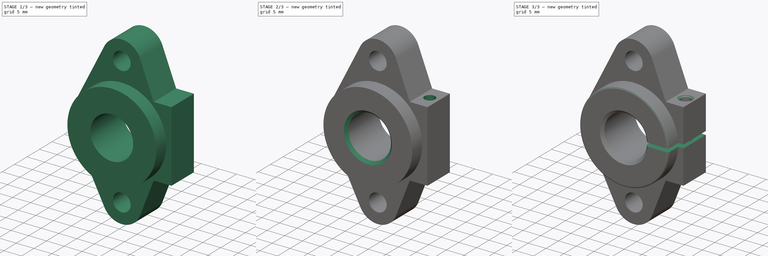
[diagram: build sequence overview — one tinted view per stage of 3, left to right]
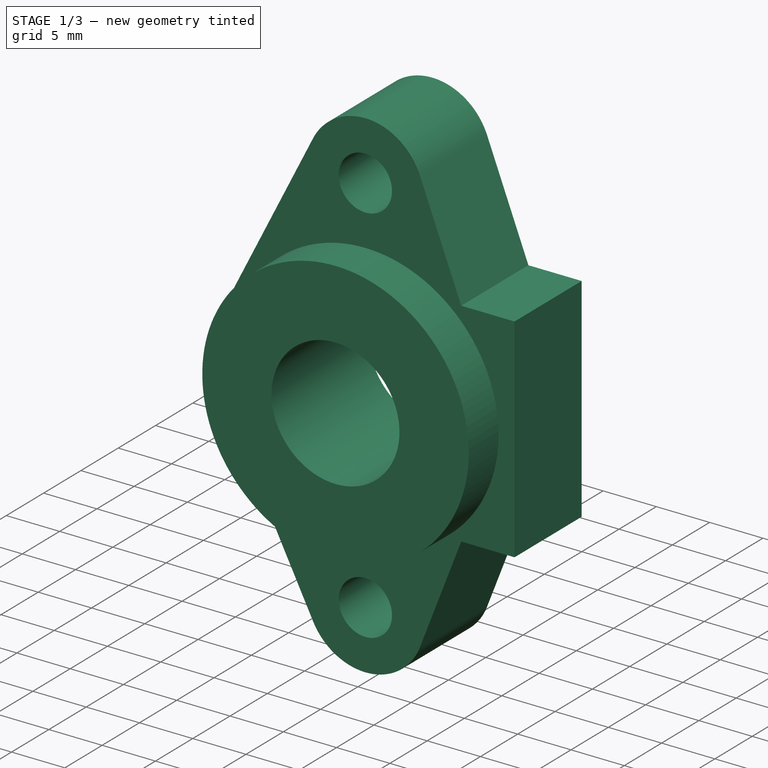
[diagram: stage 1 of 3 — iso view after this stage's code; geometry added in this stage tinted green]
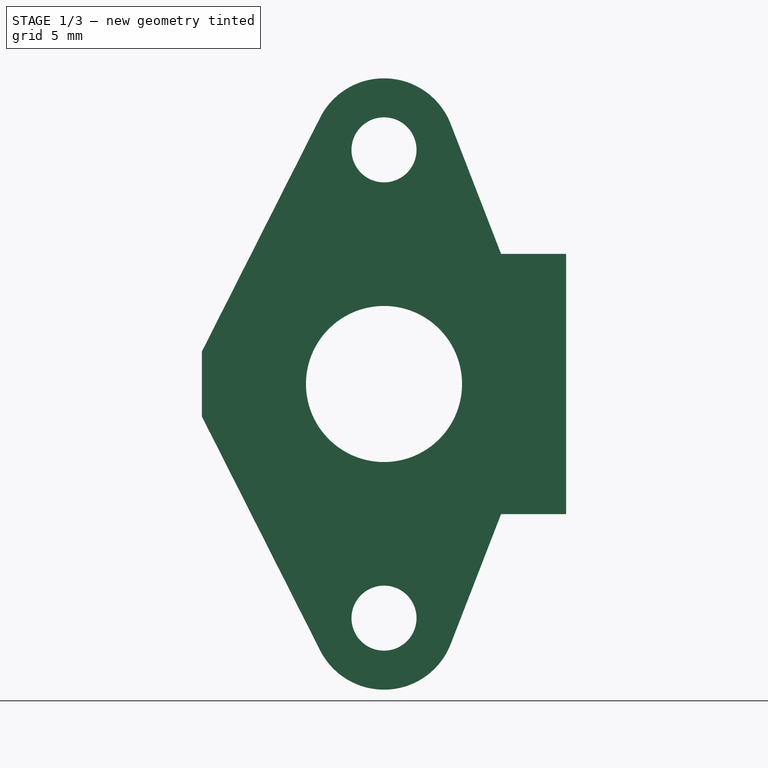
[diagram: stage 1 of 3 — front view after this stage's code; geometry added in this stage tinted green]
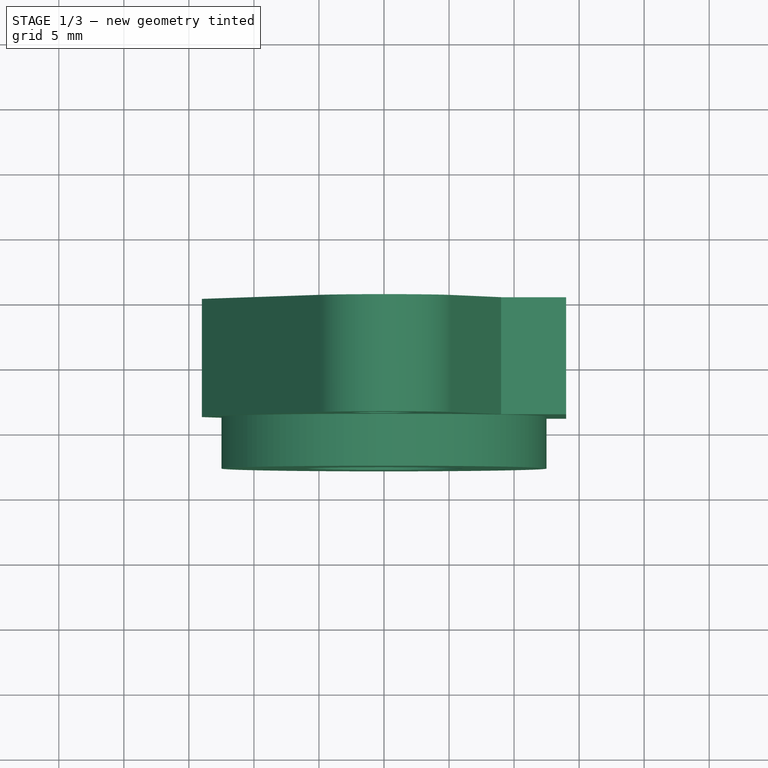
[diagram: stage 1 of 3 — top view after this stage's code; geometry added in this stage tinted green]
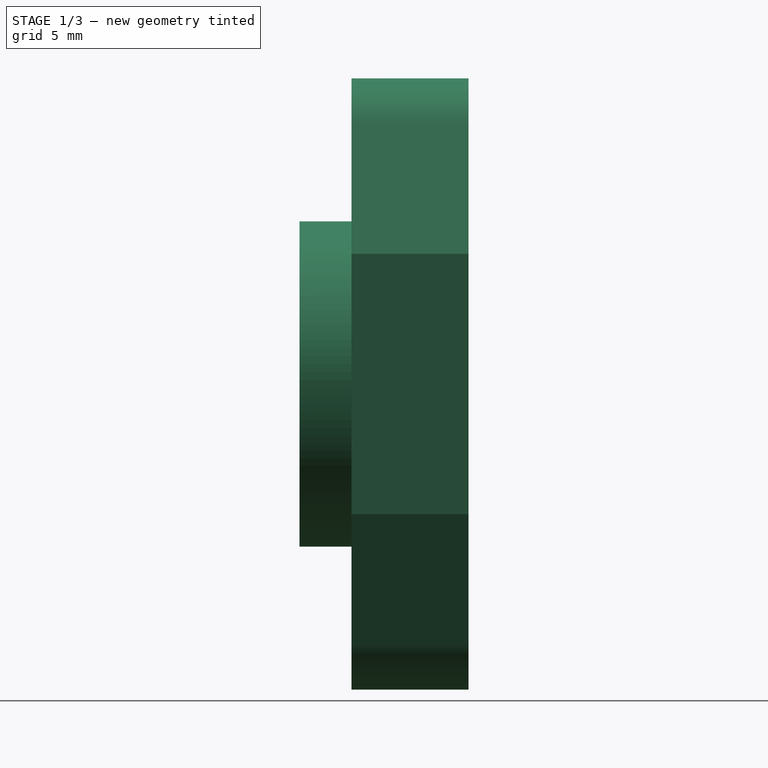
[diagram: stage 1 of 3 — right view after this stage's code; geometry added in this stage tinted green]
FCSTD DOCUMENT  (FreeCAD 0.15R4671 (Git))
Label: shf12
License: All rights reserved
LicenseURL: http://en.wikipedia.org/wiki/All_rights_reserved
objects: Sketcher::SketchObject×4, PartDesign::Pocket×2, PartDesign::Chamfer×2, PartDesign::Pad×1, PartDesign::Revolution×1, Part::MultiFuse×1, PartDesign::Fillet×1
note: 16 computed .brp shape members not serialized (recipe doc carries the construction recipe); baked Part::Feature solids carry a one-line shape summary decoded from their .brp

FEATURE [Sketcher::SketchObject] Sketch  label="mount-sketch"
  Placement = pos=(0,0,0) rot=(1,0,0;1.5708rad)
  sketch-geometry (13):
    g0: Circle CenterX=0 CenterY=18 CenterZ=0 NormalX=0 NormalY=0 NormalZ=1 Radius=2.5
    g1: Circle CenterX=0 CenterY=-18 CenterZ=0 NormalX=0 NormalY=0 NormalZ=1 Radius=2.5
    g2: LineSegment StartX=-14 StartY=-2.5 StartZ=0 EndX=-14 EndY=2.5 EndZ=0
    g3: LineSegment StartX=-14 StartY=2.5 StartZ=0 EndX=-4.90829 EndY=20.4817 EndZ=0
    g4: ArcOfCircle CenterX=0 CenterY=18 CenterZ=0 NormalX=0 NormalY=0 NormalZ=1 Radius=5.5 StartAngle=0.369816 EndAngle=2.67347
    g5: LineSegment StartX=5.12817 StartY=19.9879 StartZ=0 EndX=9 EndY=10 EndZ=0
    g6: LineSegment StartX=9 StartY=10 StartZ=0 EndX=14 EndY=10 EndZ=0
    g7: LineSegment StartX=14 StartY=10 StartZ=0 EndX=14 EndY=-10 EndZ=0
    g8: LineSegment StartX=14 StartY=-10 StartZ=0 EndX=9 EndY=-10 EndZ=0
    g9: LineSegment StartX=9 StartY=-10 StartZ=0 EndX=5.12817 EndY=-19.9879 EndZ=0
    g10: ArcOfCircle CenterX=0 CenterY=-18 CenterZ=0 NormalX=0 NormalY=0 NormalZ=1 Radius=5.5 StartAngle=3.60971 EndAngle=5.91337
    g11: LineSegment StartX=-4.9083 StartY=-20.4817 StartZ=0 EndX=-14 EndY=-2.5 EndZ=0
    g12: Circle CenterX=0 CenterY=0 CenterZ=0 NormalX=0 NormalY=0 NormalZ=1 Radius=10
  constraints (36):
    c: PointOnObject(g1,g-2)
    c: PointOnObject(g0,g-2)
    c: Symmetric(g0,g1,g-1)
    c: Radius(g0) = 2.5
    c: Equal(g0,g1)
    c: DistanceY(g0,g1) = -36
    c: Vertical(g2)
    c: Coincident(g2,g3)
    c: Tangent(g3,g4) = 1.5708
    c: Coincident(g4,g5)
    c: Coincident(g5,g6)
    c: Horizontal(g6)
    c: Coincident(g6,g7)
    c: Vertical(g7)
    c: Coincident(g7,g8)
    c: Horizontal(g8)
    c: Coincident(g8,g9)
    c: Tangent(g9,g10) = 1.5708
    c: Coincident(g10,g11)
    c: Coincident(g11,g2)
    c: Symmetric(g2,g2,g-1)
    c: DistanceY(g2,g2) = -5
    c: Symmetric(g6,g7,g-1)
    c: DistanceY(g6,g7) = -20
    c: Equal(g6,g8)
    c: DistanceX(g5,g6) = 5
    c: Coincident(g4,g0)
    c: Coincident(g10,g1)
    c: Radius(g4) = 5.5
    c: Equal(g4,g10)
    c: DistanceX(g2,g7) = 28
    c: Tangent(g5,g4)
    c: Tangent(g10,g11)
    c: DistanceX(g-1,g2) = -14
    c: Coincident(g12,g-1)
    c: Radius(g12) = 10
FEATURE [PartDesign::Pad] Pad  label="mount"
  Length = 9
  Length2 = 100
  Placement = pos=(0,0,0) rot=(1,0,0;1.5708rad)
  Sketch = -> Sketch
  Type = 0
FEATURE [Sketcher::SketchObject] Sketch001  label="shaft-support-sketch"
  Placement = pos=(0,0,0) rot=(0.57735,0.57735,0.57735;2.0944rad)
  sketch-geometry (4):
    g0: LineSegment StartX=-13 StartY=12.5 StartZ=0 EndX=0 EndY=12.5 EndZ=0
    g1: LineSegment StartX=0 StartY=12.5 StartZ=0 EndX=0 EndY=6 EndZ=0
    g2: LineSegment StartX=0 StartY=6 StartZ=0 EndX=-13 EndY=6 EndZ=0
    g3: LineSegment StartX=-13 StartY=6 StartZ=0 EndX=-13 EndY=12.5 EndZ=0
  constraints (12):
    c: Coincident(g0,g1)
    c: Coincident(g1,g2)
    c: Coincident(g2,g3)
    c: Coincident(g3,g0)
    c: Horizontal(g0)
    c: Horizontal(g2)
    c: Vertical(g1)
    c: Vertical(g3)
    c: PointOnObject(g0,g-2)
    c: DistanceX(g0,g0) = -13
    c: DistanceY(g-1,g2) = 6
    c: DistanceY(g-1,g0) = 12.5
FEATURE [PartDesign::Revolution] Revolution  label="shaft-support"
  Angle = 360
  Axis = (0,1,0)
  Base = (0,0,0)
  Placement = pos=(0,0,0) rot=(0.57735,0.57735,0.57735;2.0944rad)
  ReferenceAxis = -> Sketch001 [H_Axis]
  Sketch = -> Sketch001
FEATURE [Part::MultiFuse] Fusion  label="body"
  Shapes = -> [Pad,Revolution]
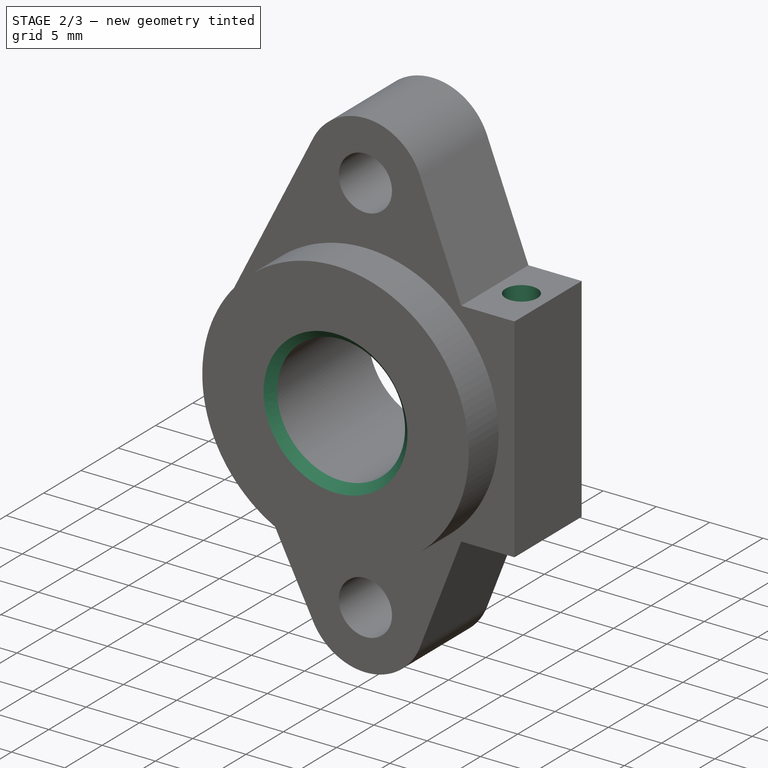
[diagram: stage 2 of 3 — iso view after this stage's code; geometry added in this stage tinted green]
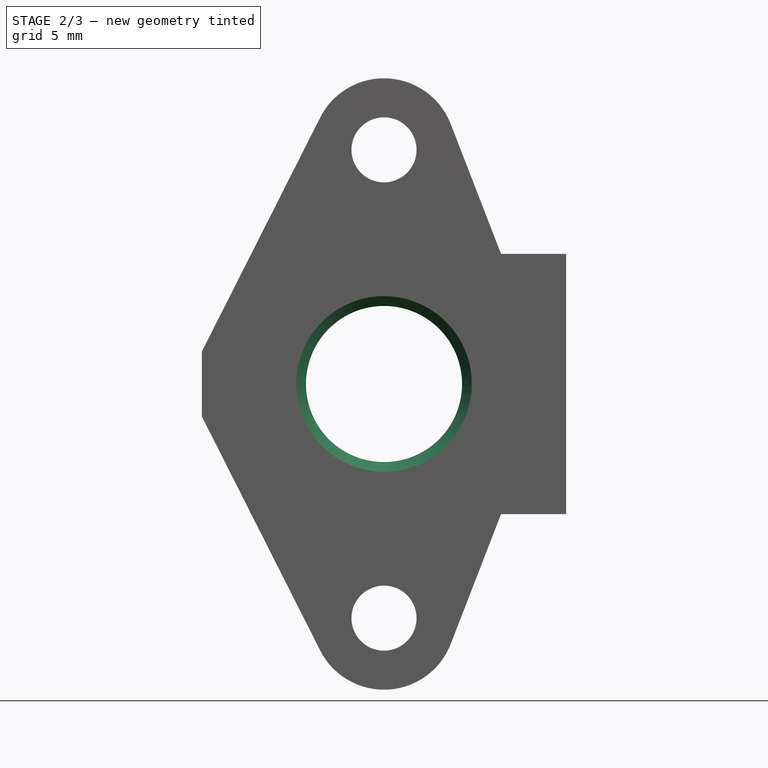
[diagram: stage 2 of 3 — front view after this stage's code; geometry added in this stage tinted green]
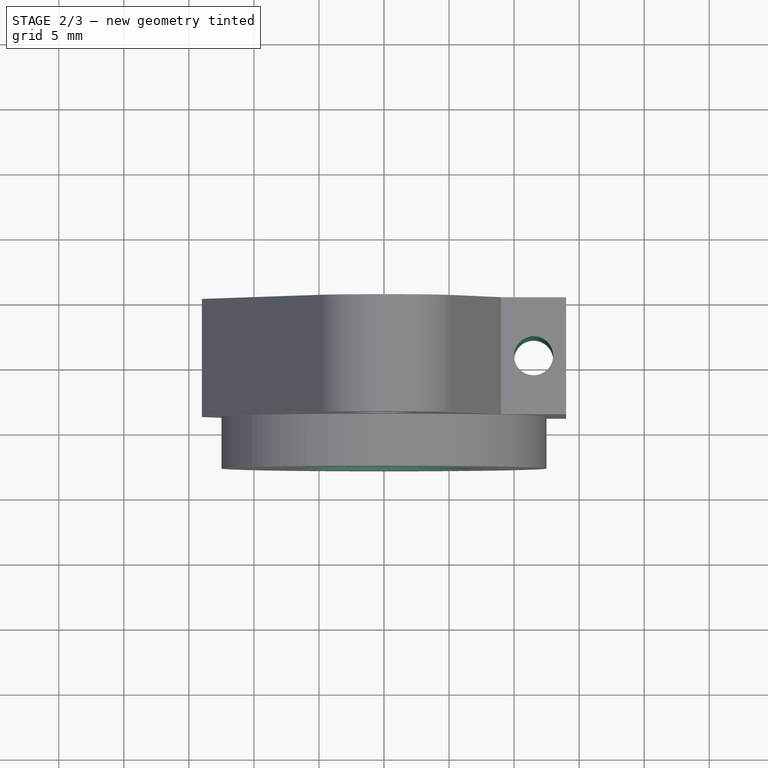
[diagram: stage 2 of 3 — top view after this stage's code; geometry added in this stage tinted green]
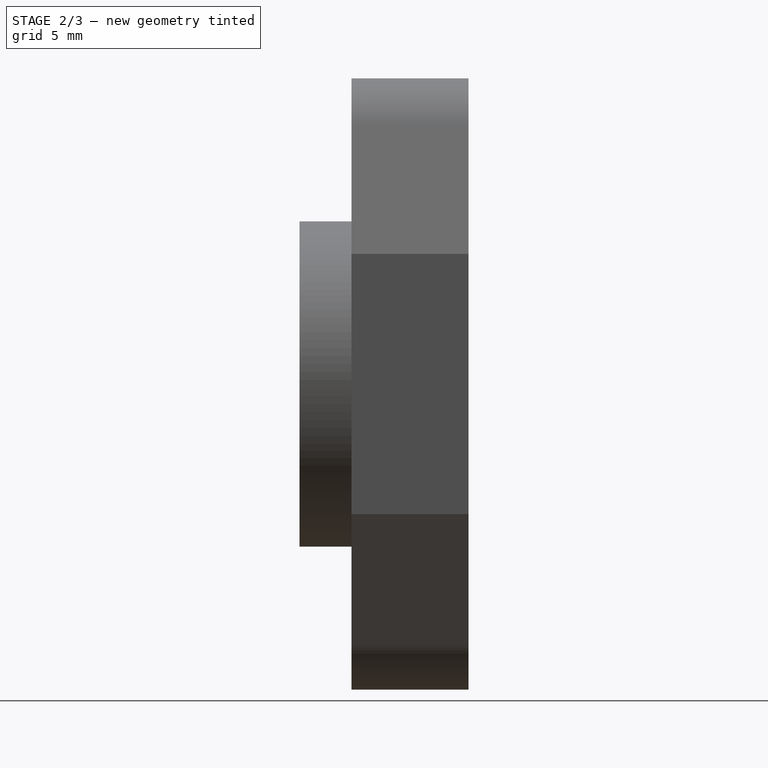
[diagram: stage 2 of 3 — right view after this stage's code; geometry added in this stage tinted green]
FEATURE [Sketcher::SketchObject] Sketch002
  ExternalGeometry = -> [Fusion]
  Placement = pos=(0,0,10) rot=(0,0,1;0rad)
  Support = -> Fusion [Face10]
  sketch-geometry (1):
    g0: Circle CenterX=11.5 CenterY=-4.5 CenterZ=0 NormalX=0 NormalY=0 NormalZ=1 Radius=1.5
  constraints (2):
    c: Symmetric(g-4,g-3,g0)
    c: Radius(g0) = 1.5
FEATURE [PartDesign::Pocket] Pocket  label="bolt-hole"
  Length = 5
  Sketch = -> Sketch002
  Type = 1
FEATURE [PartDesign::Chamfer] Chamfer  label="shaft-hole-chamfer"
  Base = -> Pocket [Edge39]
  Size = 0.75
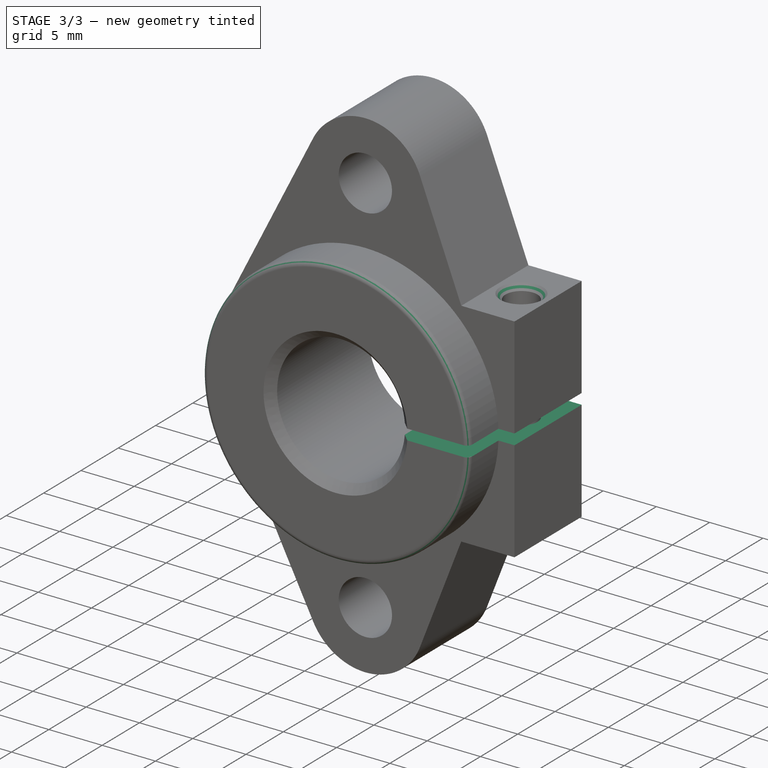
[diagram: stage 3 of 3 — iso view after this stage's code; geometry added in this stage tinted green]
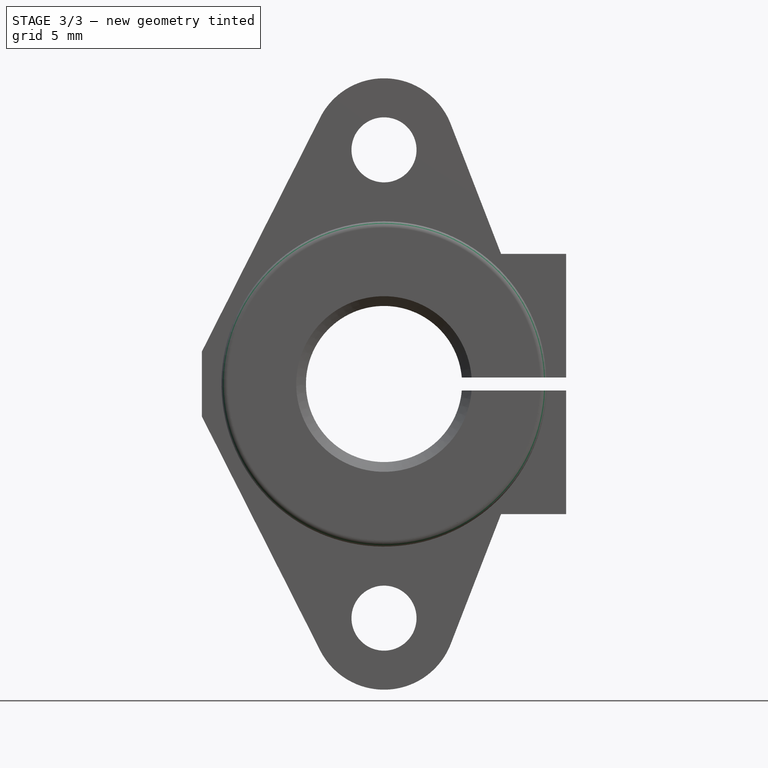
[diagram: stage 3 of 3 — front view after this stage's code; geometry added in this stage tinted green]
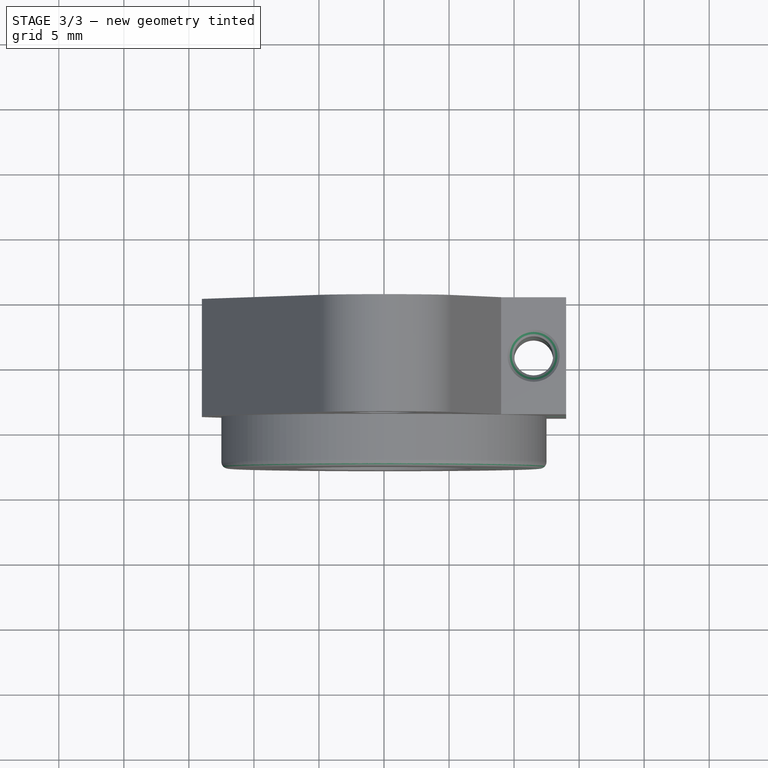
[diagram: stage 3 of 3 — top view after this stage's code; geometry added in this stage tinted green]
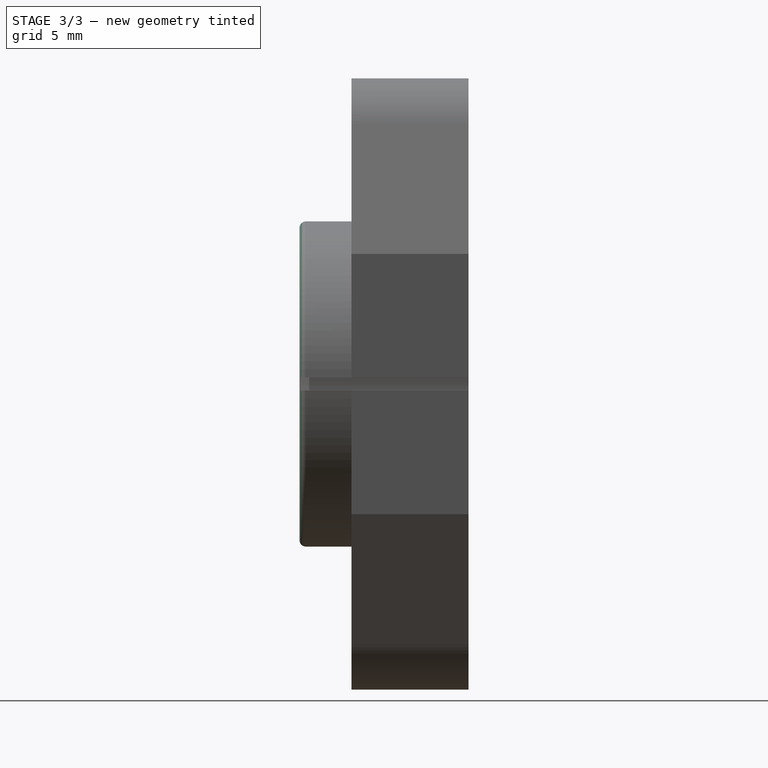
[diagram: stage 3 of 3 — right view after this stage's code; geometry added in this stage tinted green]
FEATURE [PartDesign::Chamfer] Chamfer001  label="bolt-hole-chamfer"
  Base = -> Chamfer [Edge30,Edge35]
  Size = 0.5
FEATURE [PartDesign::Fillet] Fillet  label="shaft-support-fillet"
  Base = -> Chamfer001 [Edge48]
  Radius = 0.5
FEATURE [Sketcher::SketchObject] Sketch003
  Placement = pos=(0,0,0) rot=(0,0.707107,0.707107;3.14159rad)
  Support = -> Fillet [Face18]
  sketch-geometry (4):
    g0: LineSegment StartX=0 StartY=0.5 StartZ=0 EndX=-16 EndY=0.5 EndZ=0
    g1: LineSegment StartX=-16 StartY=0.5 StartZ=0 EndX=-16 EndY=-0.5 EndZ=0
    g2: LineSegment StartX=-16 StartY=-0.5 StartZ=0 EndX=0 EndY=-0.5 EndZ=0
    g3: LineSegment StartX=0 StartY=-0.5 StartZ=0 EndX=0 EndY=0.5 EndZ=0
  constraints (12):
    c: Coincident(g0,g1)
    c: Coincident(g1,g2)
    c: Coincident(g2,g3)
    c: Coincident(g3,g0)
    c: Horizontal(g0)
    c: Horizontal(g2)
    c: Vertical(g1)
    c: Vertical(g3)
    c: PointOnObject(g0,g-2)
    c: Symmetric(g2,g0,g-1)
    c: DistanceY(g0,g1) = -1
    c: DistanceX(g0,g0) = -16
FEATURE [PartDesign::Pocket] Pocket001  label="shf12"
  Length = 5
  Sketch = -> Sketch003
  Type = 1
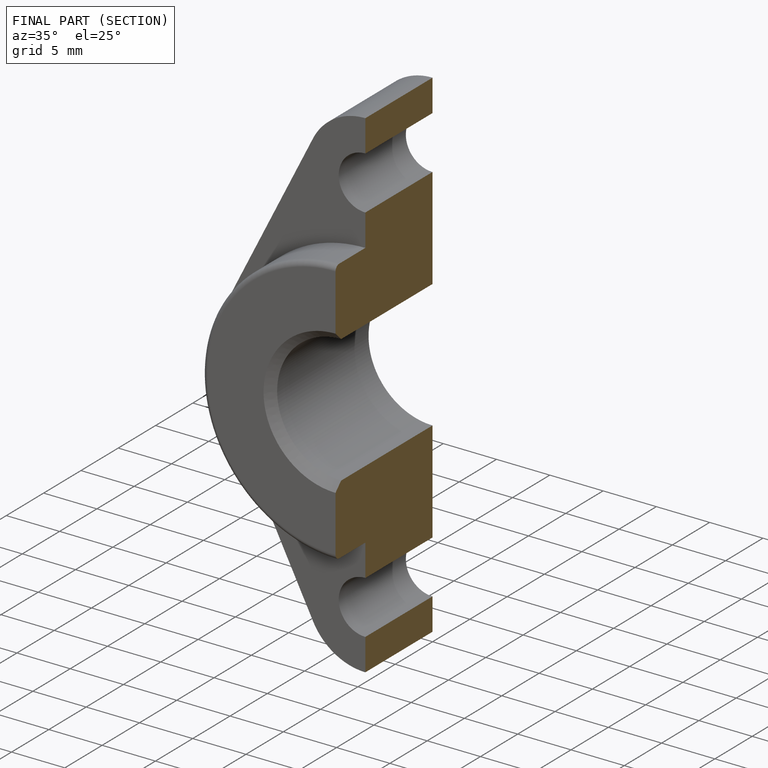
[diagram: finished part — half-section view (interior)]
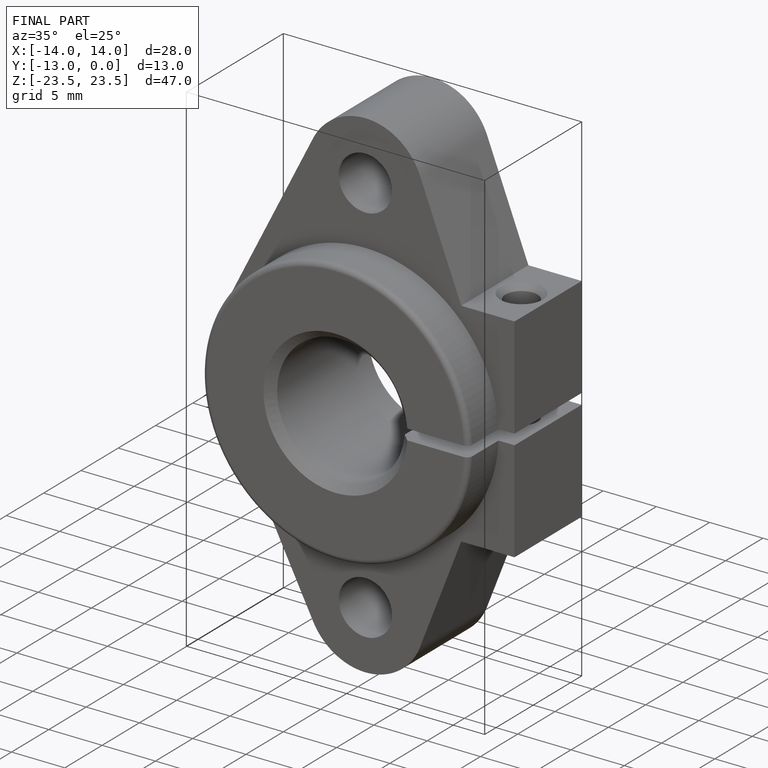
[diagram: finished part — iso view with bounding-box wireframe]
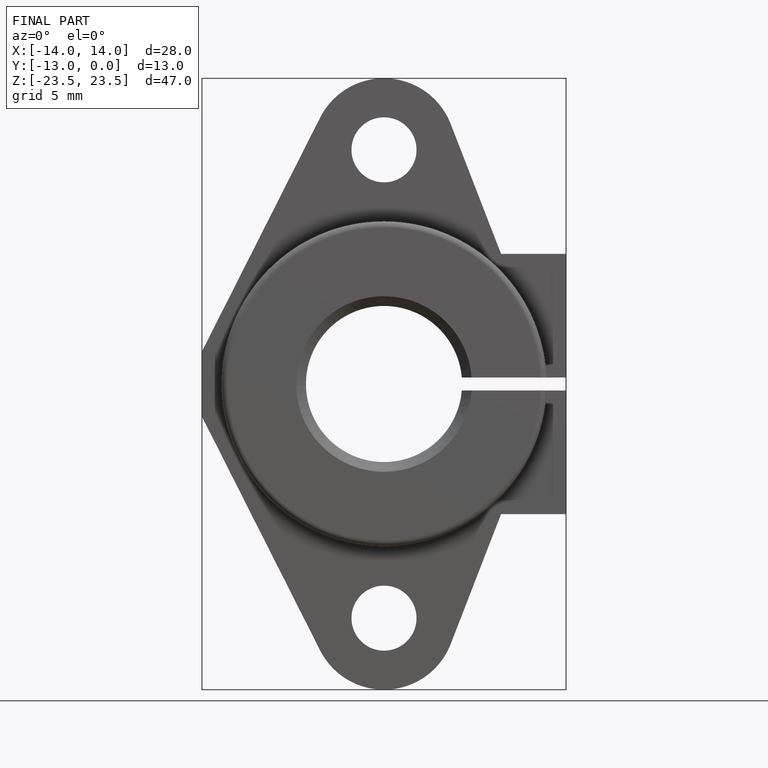
[diagram: finished part — front view with bounding-box wireframe]
